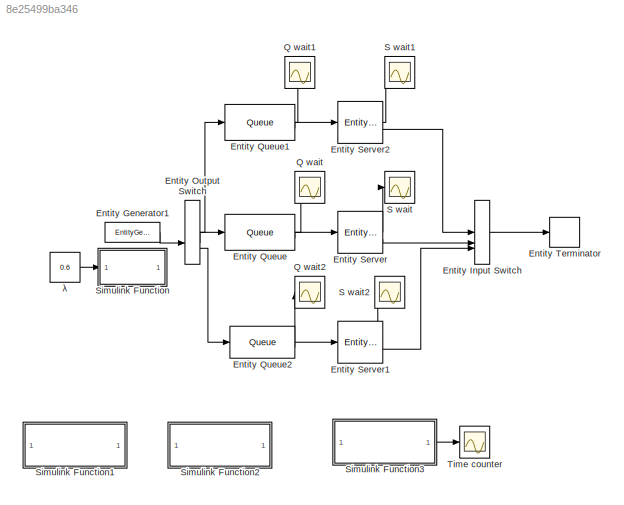
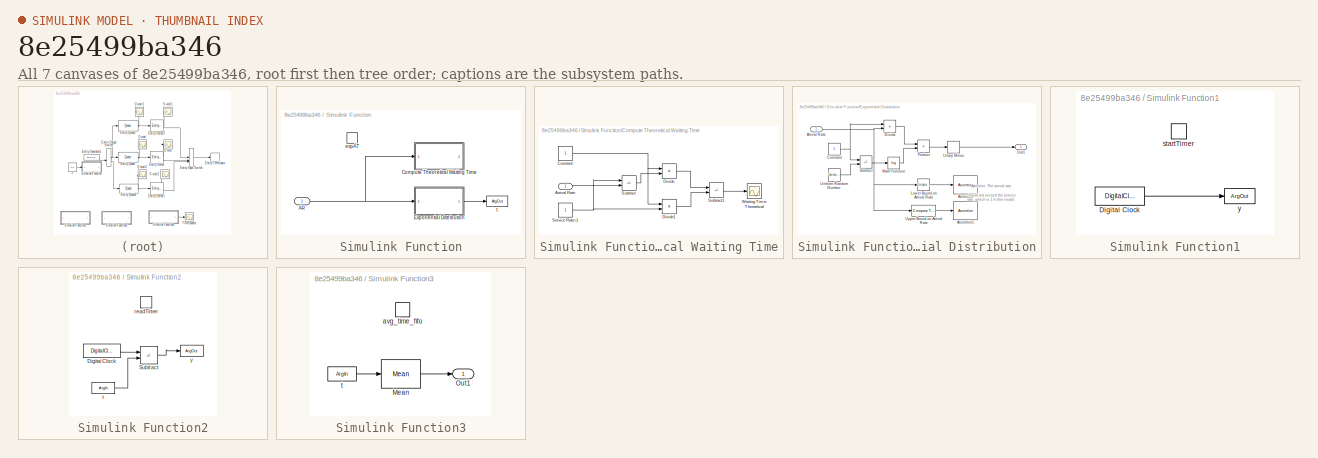
[diagram: thumbnail index - all 7 canvases of the model, root first then tree order]
MODEL slx_8e25499ba346
KIND model
CONFIG AbsTol = auto
CONFIG EnableMultiTasking = off
CONFIG FixedStep = auto
CONFIG MaxStep = auto
CONFIG MinStep = auto
CONFIG RelTol = 1e-3
CONFIG SampleTimeConstraint = Unconstrained
CONFIG SolverName = VariableStepAuto
CONFIG StartTime = 0.0
CONFIG StopTime = 100.0
BLOCK [Constant]  λ
  SampleTime = -1
  Value = 0.6
BLOCK [EntityGenerator] Entity Generator1
  AttributeInitialValue = 0|0
  AttributeName = ServiceTime|Timer
  EntityType = Structured
  EntityTypeName = Entity
  GenerateAction = entity.ServiceTime = exprnd(3);\nentitySys.priority = randi(2);\nentity.Timer = 0; % Инициализация Timer\nentity.Timer = startTimer(); % Запуск таймера
  InputPortMap = u1
  IntergenerationTimeAction = dt = expAT();
  OutputPortMap = o3
  OutputPortMessageModes = m
  TimeSource = Signal port
BLOCK [EntityInputSwitch] Entity Input Switch
  InputPortMap = u1,u2,u3
  InputPortMessageModes = m,m,m
  NumberInputPorts = 3
  OutputPortMap = o0
  OutputPortMessageModes = m
BLOCK [EntityOutputSwitch] Entity Output Switch
  InitialPortSelection = 3
  InputPortMap = u0,u1
  InputPortMessageModes = m,m
  NumberOutputPorts = 3
  OutputPortMap = o0,o1,o2
  OutputPortMessageModes = m,m,m
  SwitchAttributeName = Attribute1
  SwitchingCriterion = From control port
BLOCK [Queue] Entity Queue
  AverageWait = on
  Capacity = 5
  EntryAction = entity.Timer = startTimer();
  InputPortMap = u0
  InputPortMessageModes = m
  OutputPortMap = o2,o5
  OutputPortMessageModes = n,m
  PrioritySource = entitySys.priority
  QueueType = Priority
BLOCK [Queue] Entity Queue1
  AverageWait = on
  Capacity = 5
  InputPortMap = u0
  InputPortMessageModes = m
  OutputPortMap = o2,o5
  OutputPortMessageModes = n,m
BLOCK [Queue] Entity Queue2
  AverageWait = on
  Capacity = 35
  InputPortMap = u0
  InputPortMessageModes = m
  OutputPortMap = o2,o5
  OutputPortMessageModes = n,m
  PrioritySource = entitySys.priority
BLOCK [EntityServer] Entity Server
  AverageWait = on
  Capacity = 1
  InputPortMap = u2
  InputPortMessageModes = m
  OutputPortMap = o4,o9
  OutputPortMessageModes = n,m
  ServiceTimeSource = Attribute
BLOCK [EntityServer] Entity Server1
  AverageWait = on
  Capacity = 1
  InputPortMap = u2
  InputPortMessageModes = m
  OutputPortMap = o4,o9
  OutputPortMessageModes = n,m
BLOCK [EntityServer] Entity Server2
  AverageWait = on
  Capacity = 1
  InputPortMap = u2
  InputPortMessageModes = m
  OutputPortMap = o4,o9
  OutputPortMessageModes = n,m
BLOCK [EntityTerminator] Entity Terminator
  EntryAction = elapsedTime = readTimer(entity.Timer);\navg_time_fifo(elapsedTime);
  InputPortMap = u0
  InputPortMessageModes = m
BLOCK [Scope] Q wait
  Floating = off
  NumInputPorts = 1
  ScopeSpecificationString = Simulink.scopes.TimeScopeBlockCfg('CurrentConfiguration', extmgr.ConfigurationSet(extmgr.Configuration('Core','General UI',true),extmgr.Configuration('Core','Source UI',true),extmgr.Configuration('Sources','WiredSimulink',true,'DataLoggingVariableName','ScopeData2'),extmgr.Configuration('Visuals','Time Domain',true,'SerializedDisplays',{struct('MinYLimReal','-1.5606','MaxYLimReal','14.04539','YLab...<+1497ch>
BLOCK [Scope] Q wait1
  Floating = off
  NumInputPorts = 1
  ScopeSpecificationString = Simulink.scopes.TimeScopeBlockCfg('CurrentConfiguration', extmgr.ConfigurationSet(extmgr.Configuration('Core','General UI',true),extmgr.Configuration('Core','Source UI',true),extmgr.Configuration('Sources','WiredSimulink',true,'DataLoggingVariableName','ScopeData4'),extmgr.Configuration('Visuals','Time Domain',true,'SerializedDisplays',{struct('MinYLimReal','-0.42358','MaxYLimReal','3.81222','YLab...<+1494ch>
BLOCK [Scope] Q wait2
  Floating = off
  NumInputPorts = 1
  ScopeSpecificationString = Simulink.scopes.TimeScopeBlockCfg('CurrentConfiguration', extmgr.ConfigurationSet(extmgr.Configuration('Core','General UI',true),extmgr.Configuration('Core','Source UI',true),extmgr.Configuration('Sources','WiredSimulink',true,'DataLoggingVariableName','ScopeData6'),extmgr.Configuration('Visuals','Time Domain',true,'SerializedDisplays',{struct('MinYLimReal','-3.5953','MaxYLimReal','32.35767','YLab...<+1497ch>
BLOCK [Scope] S wait
  Floating = off
  NumInputPorts = 1
  ScopeSpecificationString = Simulink.scopes.TimeScopeBlockCfg('CurrentConfiguration', extmgr.ConfigurationSet(extmgr.Configuration('Core','General UI',true),extmgr.Configuration('Core','Source UI',true),extmgr.Configuration('Sources','WiredSimulink',true,'DataLoggingVariableName','ScopeData3'),extmgr.Configuration('Visuals','Time Domain',true,'SerializedDisplays',{struct('MinYLimReal','-0.27854','MaxYLimReal','3.82014','YLab...<+1496ch>
BLOCK [Scope] S wait1
  Floating = off
  NumInputPorts = 1
  ScopeSpecificationString = Simulink.scopes.TimeScopeBlockCfg('CurrentConfiguration', extmgr.ConfigurationSet(extmgr.Configuration('Core','General UI',true),extmgr.Configuration('Core','Source UI',true),extmgr.Configuration('Sources','WiredSimulink',true,'DataLoggingVariableName','ScopeData5'),extmgr.Configuration('Visuals','Time Domain',true,'SerializedDisplays',{struct('MinYLimReal','0.9','MaxYLimReal','1.1','YLabelReal','...<+1461ch>
BLOCK [Scope] S wait2
  Floating = off
  NumInputPorts = 1
  ScopeSpecificationString = Simulink.scopes.TimeScopeBlockCfg('CurrentConfiguration', extmgr.ConfigurationSet(extmgr.Configuration('Core','General UI',true),extmgr.Configuration('Core','Source UI',true),extmgr.Configuration('Sources','WiredSimulink',true,'DataLoggingVariableName','ScopeData7'),extmgr.Configuration('Visuals','Time Domain',true,'SerializedDisplays',{struct('MinYLimReal','0.9','MaxYLimReal','1.1','YLabelReal','...<+1467ch>
BLOCK [SubSystem] Simulink Function
  LibrarySourceBlock = sldelib/Simulink Function
  TreatAsAtomicUnit = on
BLOCK [Inport] Simulink Function/AR
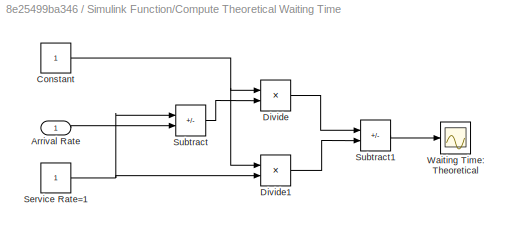
BLOCK [SubSystem] Simulink Function/Compute Theoretical Waiting Time
BLOCK [Inport] Simulink Function/Compute Theoretical Waiting Time/Arrival Rate
BLOCK [Constant] Simulink Function/Compute Theoretical Waiting Time/Constant
BLOCK [Product] Simulink Function/Compute Theoretical Waiting Time/Divide
  Inputs = */
BLOCK [Product] Simulink Function/Compute Theoretical Waiting Time/Divide1
  Inputs = */
BLOCK [Constant] Simulink Function/Compute Theoretical Waiting Time/Service Rate=1
BLOCK [Sum] Simulink Function/Compute Theoretical Waiting Time/Subtract
  IconShape = rectangular
  Inputs = +-
BLOCK [Sum] Simulink Function/Compute Theoretical Waiting Time/Subtract1
  IconShape = rectangular
  Inputs = +-
BLOCK [Scope] Simulink Function/Compute Theoretical Waiting Time/Waiting Time: Theoretical
  Floating = off
  NumInputPorts = 1
  ScopeSpecificationString = Simulink.scopes.TimeScopeBlockCfg('CurrentConfiguration', extmgr.ConfigurationSet(extmgr.Configuration('Core','General UI',true,'ShowMainToolbar',false,'ShowStatusbar',false),extmgr.Configuration('Core','Source UI',true),extmgr.Configuration('Sources','WiredSimulink',true,'DataLoggingVariableName','ScopeData2'),extmgr.Configuration('Visuals','Time Domain',true,'SerializedDisplays',{struct('MinYLim...<+1456ch>
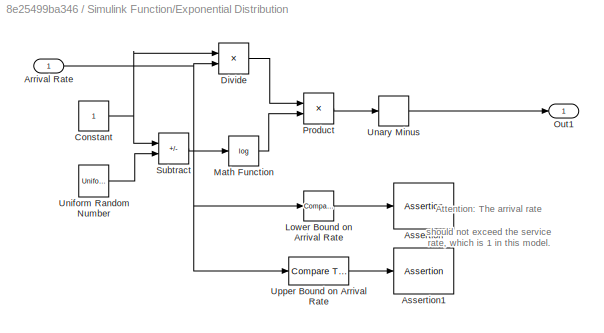
BLOCK [SubSystem] Simulink Function/Exponential Distribution
BLOCK [Inport] Simulink Function/Exponential Distribution/Arrival Rate
BLOCK [Assertion] Simulink Function/Exponential Distribution/Assertion
BLOCK [Assertion] Simulink Function/Exponential Distribution/Assertion1
BLOCK [Constant] Simulink Function/Exponential Distribution/Constant
BLOCK [Product] Simulink Function/Exponential Distribution/Divide
  Inputs = */
BLOCK [Reference] Simulink Function/Exponential Distribution/Lower Bound on Arrival Rate  REF=simulink/Logic and Bit
Operations/Compare
To Constant
  SourceBlock = simulink/Logic and Bit\nOperations/Compare\nTo Constant
  SourceType = Compare To Constant
BLOCK [Math] Simulink Function/Exponential Distribution/Math Function
  Operator = log
  SignedPower = on
BLOCK [Outport] Simulink Function/Exponential Distribution/Out1
BLOCK [Product] Simulink Function/Exponential Distribution/Product
  RndMeth = Zero
BLOCK [Sum] Simulink Function/Exponential Distribution/Subtract
  IconShape = rectangular
  Inputs = +-
BLOCK [UnaryMinus] Simulink Function/Exponential Distribution/Unary Minus
BLOCK [UniformRandomNumber] Simulink Function/Exponential Distribution/Uniform Random Number
  Minimum = 0
  Seed = 12345
BLOCK [Reference] Simulink Function/Exponential Distribution/Upper Bound on Arrival Rate   REF=simulink/Logic and Bit
Operations/Compare
To Constant
  SourceBlock = simulink/Logic and Bit\nOperations/Compare\nTo Constant
  SourceType = Compare To Constant
BLOCK [TriggerPort] Simulink Function/expAT
  FunctionName = expAT
  IsSimulinkFunction = on
  StatesWhenEnabling = held
  TriggerType = function-call
  VariantControl = Variant
BLOCK [ArgOut] Simulink Function/t
  ArgumentName = t
  DisableCoverage = on
BLOCK [SubSystem] Simulink Function1
  TreatAsAtomicUnit = on
BLOCK [DigitalClock] Simulink Function1/Digital Clock
  SampleTime = -1
BLOCK [TriggerPort] Simulink Function1/startTimer
  FunctionName = startTimer
  FunctionVisibility = scoped
  IsSimulinkFunction = on
  StatesWhenEnabling = held
  TriggerType = function-call
  VariantControl = (inherit)
BLOCK [ArgOut] Simulink Function1/y
  ArgumentName = t
  DisableCoverage = on
BLOCK [SubSystem] Simulink Function2
  TreatAsAtomicUnit = on
BLOCK [DigitalClock] Simulink Function2/Digital Clock
  SampleTime = -1
BLOCK [Sum] Simulink Function2/Subtract
  IconShape = rectangular
  Inputs = +-
BLOCK [TriggerPort] Simulink Function2/readTimer
  FunctionName = readTimer
  FunctionVisibility = scoped
  IsSimulinkFunction = on
  StatesWhenEnabling = held
  TriggerType = function-call
  VariantControl = (inherit)
BLOCK [ArgIn] Simulink Function2/t
  ArgumentName = y
  DisableCoverage = on
BLOCK [ArgOut] Simulink Function2/y
  ArgumentName = y
  DisableCoverage = on
BLOCK [SubSystem] Simulink Function3
  TreatAsAtomicUnit = on
BLOCK [Reference] Simulink Function3/Mean  REF=dspstat3/Mean
  SourceBlock = dspstat3/Mean
  SourceType = Mean
  UserDataPersistent = on
BLOCK [Outport] Simulink Function3/Out1
BLOCK [TriggerPort] Simulink Function3/avg_time_fifo
  FunctionName = avg_time_fifo
  FunctionVisibility = scoped
  IsSimulinkFunction = on
  StatesWhenEnabling = held
  TriggerType = function-call
  VariantControl = (inherit)
BLOCK [ArgIn] Simulink Function3/t
  ArgumentName = t
  DisableCoverage = on
BLOCK [Scope] Time counter
  Floating = off
  NumInputPorts = 1
  ScopeSpecificationString = Simulink.scopes.TimeScopeBlockCfg('CurrentConfiguration', extmgr.ConfigurationSet(extmgr.Configuration('Core','General UI',true),extmgr.Configuration('Core','Source UI',true),extmgr.Configuration('Sources','WiredSimulink',true,'DataLoggingVariableName','ScopeData1'),extmgr.Configuration('Visuals','Time Domain',true,'SerializedDisplays',{struct('MinYLimReal','-4.625','MaxYLimReal','41.625','YLabelR...<+1491ch>
ANNOTATION Simulink Function/Exponential Distribution: Attention: The arrival rate should not exceed the service rate, which is 1 in this model.
LINE  λ:1 -> Simulink Function:1
LINE Entity Generator1:1 -> Entity Output Switch:2
LINE Entity Input Switch:1 -> Entity Terminator:1
LINE Entity Output Switch:1 -> Entity Queue1:1
LINE Entity Output Switch:2 -> Entity Queue:1
LINE Entity Output Switch:3 -> Entity Queue2:1
LINE Entity Queue1:1 -> Q wait1:1
LINE Entity Queue1:2 -> Entity Server2:1
LINE Entity Queue2:1 -> Q wait2:1
LINE Entity Queue2:2 -> Entity Server1:1
LINE Entity Queue:1 -> Q wait:1
LINE Entity Queue:2 -> Entity Server:1
LINE Entity Server1:1 -> S wait2:1
LINE Entity Server1:2 -> Entity Input Switch:3
LINE Entity Server2:1 -> S wait1:1
LINE Entity Server2:2 -> Entity Input Switch:1
LINE Entity Server:1 -> S wait:1
LINE Entity Server:2 -> Entity Input Switch:2
NET Simulink Function/AR:1 -> Simulink Function/Compute Theoretical Waiting Time:1, Simulink Function/Exponential Distribution:1
LINE Simulink Function/Compute Theoretical Waiting Time/Arrival Rate:1 -> Simulink Function/Compute Theoretical Waiting Time/Subtract:2
NET Simulink Function/Compute Theoretical Waiting Time/Constant:1 -> Simulink Function/Compute Theoretical Waiting Time/Divide1:1, Simulink Function/Compute Theoretical Waiting Time/Divide:1
LINE Simulink Function/Compute Theoretical Waiting Time/Divide1:1 -> Simulink Function/Compute Theoretical Waiting Time/Subtract1:2
LINE Simulink Function/Compute Theoretical Waiting Time/Divide:1 -> Simulink Function/Compute Theoretical Waiting Time/Subtract1:1
NET Simulink Function/Compute Theoretical Waiting Time/Service Rate=1:1 -> Simulink Function/Compute Theoretical Waiting Time/Divide1:2, Simulink Function/Compute Theoretical Waiting Time/Subtract:1
LINE Simulink Function/Compute Theoretical Waiting Time/Subtract1:1 -> Simulink Function/Compute Theoretical Waiting Time/Waiting Time: Theoretical:1
LINE Simulink Function/Compute Theoretical Waiting Time/Subtract:1 -> Simulink Function/Compute Theoretical Waiting Time/Divide:2
NET Simulink Function/Exponential Distribution/Arrival Rate:1 -> Simulink Function/Exponential Distribution/Divide:2, Simulink Function/Exponential Distribution/Lower Bound on Arrival Rate:1, Simulink Function/Exponential Distribution/Upper Bound on Arrival Rate :1
NET Simulink Function/Exponential Distribution/Constant:1 -> Simulink Function/Exponential Distribution/Divide:1, Simulink Function/Exponential Distribution/Subtract:1
LINE Simulink Function/Exponential Distribution/Divide:1 -> Simulink Function/Exponential Distribution/Product:1
LINE Simulink Function/Exponential Distribution/Lower Bound on Arrival Rate:1 -> Simulink Function/Exponential Distribution/Assertion:1
LINE Simulink Function/Exponential Distribution/Math Function:1 -> Simulink Function/Exponential Distribution/Product:2
LINE Simulink Function/Exponential Distribution/Product:1 -> Simulink Function/Exponential Distribution/Unary Minus:1
LINE Simulink Function/Exponential Distribution/Subtract:1 -> Simulink Function/Exponential Distribution/Math Function:1
LINE Simulink Function/Exponential Distribution/Unary Minus:1 -> Simulink Function/Exponential Distribution/Out1:1
LINE Simulink Function/Exponential Distribution/Uniform Random Number:1 -> Simulink Function/Exponential Distribution/Subtract:2
LINE Simulink Function/Exponential Distribution/Upper Bound on Arrival Rate :1 -> Simulink Function/Exponential Distribution/Assertion1:1
LINE Simulink Function/Exponential Distribution:1 -> Simulink Function/t:1
LINE Simulink Function1/Digital Clock:1 -> Simulink Function1/y:1
LINE Simulink Function2/Digital Clock:1 -> Simulink Function2/Subtract:1
LINE Simulink Function2/Subtract:1 -> Simulink Function2/y:1
LINE Simulink Function2/t:1 -> Simulink Function2/Subtract:2
LINE Simulink Function3/Mean:1 -> Simulink Function3/Out1:1
LINE Simulink Function3/t:1 -> Simulink Function3/Mean:1
LINE Simulink Function3:1 -> Time counter:1
note: NET lines group one-source signal fan-out (src -> all destinations, sorted); 1:1 wires keep LINE
